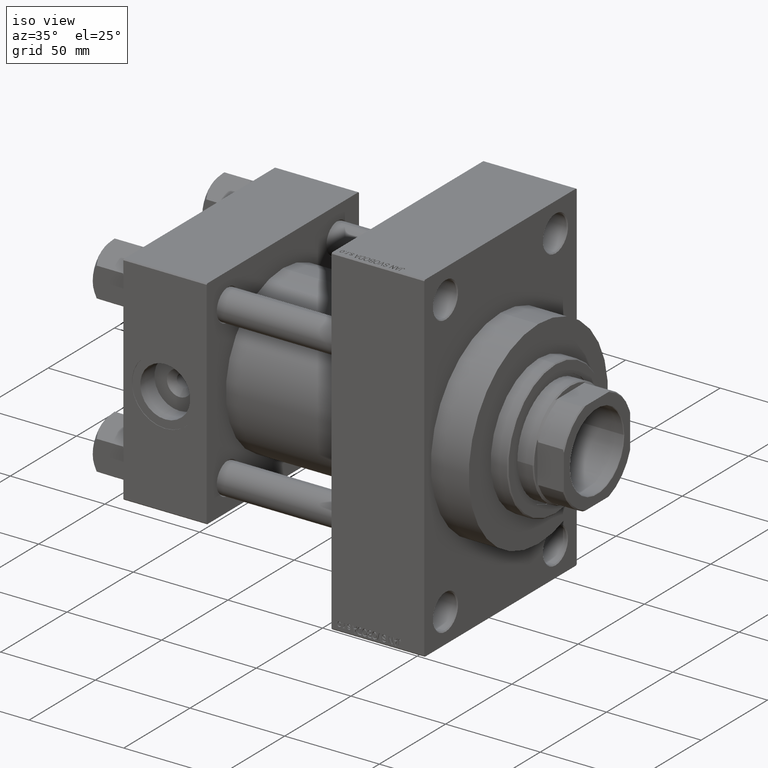
[diagram: clean part render]
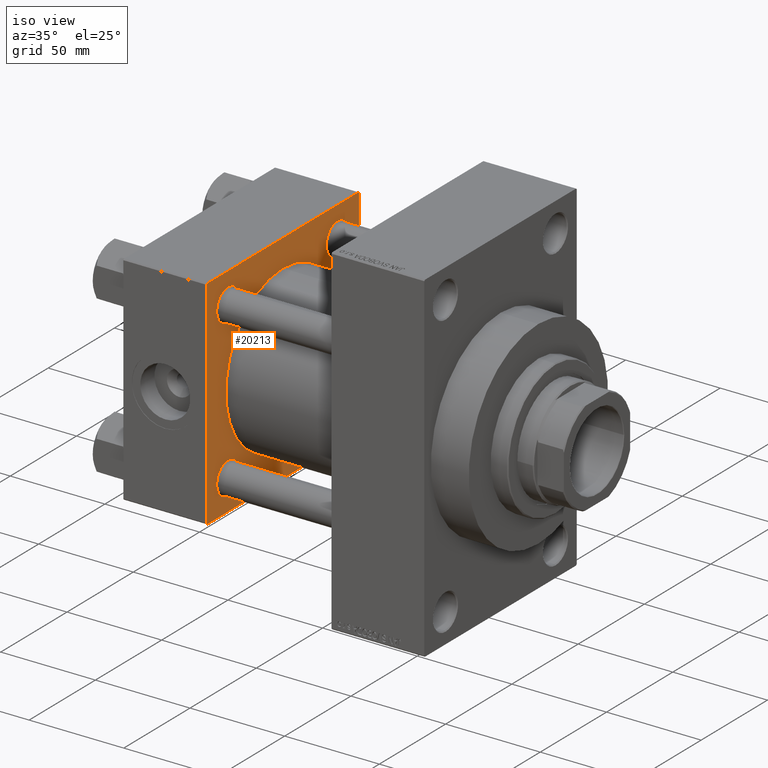
[diagram: same view with one face highlighted and labeled with its STEP entity id]
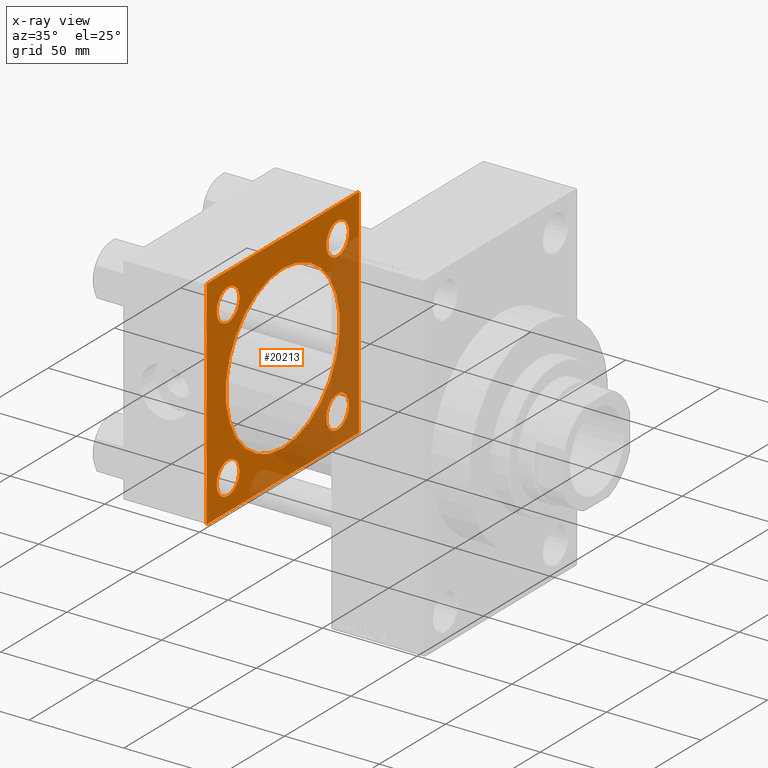
[diagram: x-ray of the same camera — body ghosted, the highlighted face saturated]
A machine part, iso view. The second image highlights one B-rep face of the part: STEP entity #20213.
The next image is the same camera in x-ray: the body ghosted, the highlighted face saturated — about 37% of this face is hidden behind the body in this view.
In plain terms, the highlighted planar face has unit normal (-1, 0, 0).
Its self-contained STEP definition (entity closure, byte-faithful):
#121 = CIRCLE ( 'NONE', #33420, 8.500000000000090594 ) ;
#449 = VECTOR ( 'NONE', #20014, 1000.000000000000114 ) ;
#603 = VERTEX_POINT ( 'NONE', #38707 ) ;
#767 = DIRECTION ( 'NONE',  ( -1.000000000000000000, 0.000000000000000000, -0.000000000000000000 ) ) ;
#1225 = CARTESIAN_POINT ( 'NONE',  ( 44.00000000000000000, 57.50000000000000000, 57.50000000000001421 ) ) ;
#1260 = EDGE_CURVE ( 'NONE', #8168, #603, #28650, .T. ) ;
#1460 = ORIENTED_EDGE ( 'NONE', *, *, #26257, .F. ) ;
#1523 = ORIENTED_EDGE ( 'NONE', *, *, #43176, .F. ) ;
#1605 = EDGE_CURVE ( 'NONE', #603, #8168, #121, .T. ) ;
#2193 = DIRECTION ( 'NONE',  ( -1.000000000000000000, 0.000000000000000000, -0.000000000000000000 ) ) ;
#2336 = EDGE_LOOP ( 'NONE', ( #26330, #1523 ) ) ;
#2998 = VECTOR ( 'NONE', #5491, 999.9999999999998863 ) ;
#3215 = CARTESIAN_POINT ( 'NONE',  ( 44.00000000000000000, -41.34999999999998721, 41.35000000000000142 ) ) ;
#3219 = ORIENTED_EDGE ( 'NONE', *, *, #8647, .T. ) ;
#3868 = AXIS2_PLACEMENT_3D ( 'NONE', #46326, #32129, #23672 ) ;
#4180 = EDGE_CURVE ( 'NONE', #29920, #13466, #17881, .T. ) ;
#4201 = DIRECTION ( 'NONE',  ( -1.000000000000000000, 0.000000000000000000, -0.000000000000000000 ) ) ;
#4269 = EDGE_LOOP ( 'NONE', ( #42209, #42057 ) ) ;
#4418 = DIRECTION ( 'NONE',  ( 0.000000000000000000, 0.000000000000000000, 1.000000000000000000 ) ) ;
#4647 = AXIS2_PLACEMENT_3D ( 'NONE', #26728, #19769, #28685 ) ;
#4856 = LINE ( 'NONE', #8101, #449 ) ;
#4894 = DIRECTION ( 'NONE',  ( 0.000000000000000000, 0.000000000000000000, 1.000000000000000000 ) ) ;
#5075 = VECTOR ( 'NONE', #22500, 1000.000000000000000 ) ;
#5105 = CARTESIAN_POINT ( 'NONE',  ( 44.00000000000000000, 41.34999999999999432, 32.84999999999990905 ) ) ;
#5177 = EDGE_LOOP ( 'NONE', ( #36809, #3219 ) ) ;
#5491 = DIRECTION ( 'NONE',  ( -0.000000000000000000, -0.7071067811865574537, -0.7071067811865376918 ) ) ;
#5973 = ORIENTED_EDGE ( 'NONE', *, *, #28668, .T. ) ;
#6616 = CARTESIAN_POINT ( 'NONE',  ( 44.00000000000000000, 57.50000000000000000, -57.49999999999999289 ) ) ;
#6907 = LINE ( 'NONE', #13462, #44022 ) ;
#7115 = AXIS2_PLACEMENT_3D ( 'NONE', #30867, #12236, #15238 ) ;
#7590 = AXIS2_PLACEMENT_3D ( 'NONE', #20513, #35680, #28201 ) ;
#7635 = VERTEX_POINT ( 'NONE', #32581 ) ;
#7890 = DIRECTION ( 'NONE',  ( -1.000000000000000000, 0.000000000000000000, -0.000000000000000000 ) ) ;
#8101 = CARTESIAN_POINT ( 'NONE',  ( 44.00000000000000000, 57.00000000000001421, 57.50000000000001421 ) ) ;
#8148 = EDGE_CURVE ( 'NONE', #29920, #29545, #4856, .T. ) ;
#8168 = VERTEX_POINT ( 'NONE', #5105 ) ;
#8647 = EDGE_CURVE ( 'NONE', #10388, #7635, #34572, .T. ) ;
#9262 = CARTESIAN_POINT ( 'NONE',  ( 44.00000000000000000, -57.50000000000000000, 56.99999999999997868 ) ) ;
#9472 = LINE ( 'NONE', #36052, #2998 ) ;
#10388 = VERTEX_POINT ( 'NONE', #34139 ) ;
#11001 = EDGE_LOOP ( 'NONE', ( #1460, #5973, #47270, #26318, #27800, #41418, #43995, #18111 ) ) ;
#11123 = EDGE_CURVE ( 'NONE', #41259, #12216, #40335, .T. ) ;
#11623 = CARTESIAN_POINT ( 'NONE',  ( 44.00000000000000000, -41.34999999999998721, 41.35000000000000142 ) ) ;
#12000 = CARTESIAN_POINT ( 'NONE',  ( 44.00000000000000000, -2.602085213965210642E-15, 43.00000000000000000 ) ) ;
#12216 = VERTEX_POINT ( 'NONE', #16012 ) ;
#12236 = DIRECTION ( 'NONE',  ( 1.000000000000000000, -0.000000000000000000, 0.000000000000000000 ) ) ;
#12656 = FACE_OUTER_BOUND ( 'NONE', #11001, .T. ) ;
#13208 = DIRECTION ( 'NONE',  ( 0.000000000000000000, 6.033820786006285224E-17, -1.000000000000000000 ) ) ;
#13380 = CARTESIAN_POINT ( 'NONE',  ( 44.00000000000000000, -41.34999999999998721, 32.84999999999991616 ) ) ;
#13389 = FACE_BOUND ( 'NONE', #42989, .T. ) ;
#13462 = CARTESIAN_POINT ( 'NONE',  ( 44.00000000000000000, 57.50000000000000000, -57.00000000000000000 ) ) ;
#13466 = VERTEX_POINT ( 'NONE', #39757 ) ;
#14084 = LINE ( 'NONE', #6616, #5075 ) ;
#14642 = CARTESIAN_POINT ( 'NONE',  ( 44.00000000000000000, 57.50000000000000000, 57.50000000000001421 ) ) ;
#15238 = DIRECTION ( 'NONE',  ( 0.000000000000000000, 0.000000000000000000, 1.000000000000000000 ) ) ;
#16012 = CARTESIAN_POINT ( 'NONE',  ( 44.00000000000000000, 41.34999999999999432, -49.85000000000008669 ) ) ;
#17103 = FACE_BOUND ( 'NONE', #4269, .T. ) ;
#17316 = VERTEX_POINT ( 'NONE', #25364 ) ;
#17736 = ORIENTED_EDGE ( 'NONE', *, *, #11123, .T. ) ;
#17881 = LINE ( 'NONE', #14642, #43078 ) ;
#18111 = ORIENTED_EDGE ( 'NONE', *, *, #25197, .T. ) ;
#18210 = CARTESIAN_POINT ( 'NONE',  ( 44.00000000000000000, -56.99999999999997158, 57.49999999999999289 ) ) ;
#18304 = VERTEX_POINT ( 'NONE', #9262 ) ;
#18777 = CARTESIAN_POINT ( 'NONE',  ( 44.00000000000000000, -57.00000000000001421, -57.50000000000000711 ) ) ;
#18798 = AXIS2_PLACEMENT_3D ( 'NONE', #11623, #7890, #4894 ) ;
#19354 = VERTEX_POINT ( 'NONE', #32991 ) ;
#19769 = DIRECTION ( 'NONE',  ( -1.000000000000000000, 0.000000000000000000, -0.000000000000000000 ) ) ;
#20014 = DIRECTION ( 'NONE',  ( 0.000000000000000000, -0.7071067811865573427, 0.7071067811865376918 ) ) ;
#20159 = LINE ( 'NONE', #43032, #30887 ) ;
#20213 = ADVANCED_FACE ( 'NONE', ( #43455, #13389, #17103, #47188, #32014, #12656 ), #28521, .F. ) ;
#20513 = CARTESIAN_POINT ( 'NONE',  ( 44.00000000000000000, 41.34999999999999432, -41.34999999999999432 ) ) ;
#22500 = DIRECTION ( 'NONE',  ( 0.000000000000000000, -1.000000000000000000, -1.206764157201257291E-16 ) ) ;
#22632 = EDGE_CURVE ( 'NONE', #22879, #24569, #35865, .T. ) ;
#22879 = VERTEX_POINT ( 'NONE', #13380 ) ;
#23568 = LINE ( 'NONE', #1225, #29989 ) ;
#23672 = DIRECTION ( 'NONE',  ( 0.000000000000000000, 0.000000000000000000, 1.000000000000000000 ) ) ;
#24235 = VERTEX_POINT ( 'NONE', #27238 ) ;
#24569 = VERTEX_POINT ( 'NONE', #40337 ) ;
#24608 = VERTEX_POINT ( 'NONE', #18210 ) ;
#24836 = DIRECTION ( 'NONE',  ( -1.000000000000000000, 0.000000000000000000, -0.000000000000000000 ) ) ;
#24927 = EDGE_CURVE ( 'NONE', #7635, #10388, #35937, .T. ) ;
#25197 = EDGE_CURVE ( 'NONE', #19354, #24235, #41142, .T. ) ;
#25271 = CIRCLE ( 'NONE', #3868, 43.00000000000000000 ) ;
#25364 = CARTESIAN_POINT ( 'NONE',  ( 44.00000000000000000, 57.00000000000002842, -57.49999999999999289 ) ) ;
#26257 = EDGE_CURVE ( 'NONE', #17316, #24235, #14084, .T. ) ;
#26318 = ORIENTED_EDGE ( 'NONE', *, *, #8148, .T. ) ;
#26330 = ORIENTED_EDGE ( 'NONE', *, *, #48001, .F. ) ;
#26728 = CARTESIAN_POINT ( 'NONE',  ( 44.00000000000000000, 41.34999999999999432, -41.34999999999999432 ) ) ;
#27238 = CARTESIAN_POINT ( 'NONE',  ( 44.00000000000000000, -57.00000000000001421, -57.50000000000000711 ) ) ;
#27507 = CIRCLE ( 'NONE', #18798, 8.500000000000090594 ) ;
#27541 = ORIENTED_EDGE ( 'NONE', *, *, #1260, .T. ) ;
#27800 = ORIENTED_EDGE ( 'NONE', *, *, #45077, .T. ) ;
#27933 = VERTEX_POINT ( 'NONE', #44381 ) ;
#27972 = AXIS2_PLACEMENT_3D ( 'NONE', #42677, #42193, #4418 ) ;
#28031 = CARTESIAN_POINT ( 'NONE',  ( 44.00000000000000000, 0.000000000000000000, 0.000000000000000000 ) ) ;
#28035 = DIRECTION ( 'NONE',  ( 0.000000000000000000, -1.000000000000000000, -1.810146235801885567E-16 ) ) ;
#28201 = DIRECTION ( 'NONE',  ( 0.000000000000000000, 0.000000000000000000, 1.000000000000000000 ) ) ;
#28521 = PLANE ( 'NONE',  #41473 ) ;
#28650 = CIRCLE ( 'NONE', #42153, 8.500000000000090594 ) ;
#28668 = EDGE_CURVE ( 'NONE', #17316, #13466, #6907, .T. ) ;
#28685 = DIRECTION ( 'NONE',  ( 0.000000000000000000, 0.000000000000000000, 1.000000000000000000 ) ) ;
#29348 = DIRECTION ( 'NONE',  ( 0.000000000000000000, 0.000000000000000000, 1.000000000000000000 ) ) ;
#29545 = VERTEX_POINT ( 'NONE', #32842 ) ;
#29782 = DIRECTION ( 'NONE',  ( 0.000000000000000000, 0.000000000000000000, -1.000000000000000000 ) ) ;
#29920 = VERTEX_POINT ( 'NONE', #41717 ) ;
#29989 = VECTOR ( 'NONE', #28035, 1000.000000000000000 ) ;
#30716 = EDGE_CURVE ( 'NONE', #12216, #41259, #40921, .T. ) ;
#30867 = CARTESIAN_POINT ( 'NONE',  ( 44.00000000000000000, -2.602085213965210642E-15, 0.000000000000000000 ) ) ;
#30887 = VECTOR ( 'NONE', #13208, 1000.000000000000000 ) ;
#31520 = DIRECTION ( 'NONE',  ( -0.000000000000000000, 0.000000000000000000, 1.000000000000000000 ) ) ;
#32014 = FACE_BOUND ( 'NONE', #2336, .T. ) ;
#32129 = DIRECTION ( 'NONE',  ( 1.000000000000000000, -0.000000000000000000, 0.000000000000000000 ) ) ;
#32581 = CARTESIAN_POINT ( 'NONE',  ( 44.00000000000000000, -41.34999999999998721, -49.85000000000009379 ) ) ;
#32842 = CARTESIAN_POINT ( 'NONE',  ( 44.00000000000000000, 57.00000000000001421, 57.50000000000001421 ) ) ;
#32991 = CARTESIAN_POINT ( 'NONE',  ( 44.00000000000000000, -57.49999999999999289, -57.00000000000003553 ) ) ;
#33332 = DIRECTION ( 'NONE',  ( -1.000000000000000000, 0.000000000000000000, -0.000000000000000000 ) ) ;
#33420 = AXIS2_PLACEMENT_3D ( 'NONE', #49196, #4201, #37991 ) ;
#34139 = CARTESIAN_POINT ( 'NONE',  ( 44.00000000000000000, -41.34999999999998721, -32.84999999999991616 ) ) ;
#34572 = CIRCLE ( 'NONE', #39320, 8.500000000000090594 ) ;
#35680 = DIRECTION ( 'NONE',  ( -1.000000000000000000, 0.000000000000000000, -0.000000000000000000 ) ) ;
#35865 = CIRCLE ( 'NONE', #44587, 8.500000000000090594 ) ;
#35893 = ORIENTED_EDGE ( 'NONE', *, *, #30716, .T. ) ;
#35937 = CIRCLE ( 'NONE', #27972, 8.500000000000090594 ) ;
#36052 = CARTESIAN_POINT ( 'NONE',  ( 44.00000000000000000, -57.50000000000000000, 56.99999999999997868 ) ) ;
#36809 = ORIENTED_EDGE ( 'NONE', *, *, #24927, .T. ) ;
#37991 = DIRECTION ( 'NONE',  ( 0.000000000000000000, 0.000000000000000000, 1.000000000000000000 ) ) ;
#38052 = CARTESIAN_POINT ( 'NONE',  ( 44.00000000000000000, 41.34999999999999432, 41.34999999999999432 ) ) ;
#38707 = CARTESIAN_POINT ( 'NONE',  ( 44.00000000000000000, 41.34999999999999432, 49.85000000000008669 ) ) ;
#38898 = EDGE_CURVE ( 'NONE', #24569, #22879, #27507, .T. ) ;
#39320 = AXIS2_PLACEMENT_3D ( 'NONE', #45006, #33332, #29348 ) ;
#39757 = CARTESIAN_POINT ( 'NONE',  ( 44.00000000000000000, 57.50000000000000000, -56.99999999999997158 ) ) ;
#40043 = DIRECTION ( 'NONE',  ( -0.000000000000000000, 0.7071067811865328068, 0.7071067811865622277 ) ) ;
#40261 = VERTEX_POINT ( 'NONE', #12000 ) ;
#40335 = CIRCLE ( 'NONE', #4647, 8.500000000000090594 ) ;
#40337 = CARTESIAN_POINT ( 'NONE',  ( 44.00000000000000000, -41.34999999999998721, 49.85000000000009379 ) ) ;
#40921 = CIRCLE ( 'NONE', #7590, 8.500000000000090594 ) ;
#41142 = LINE ( 'NONE', #18777, #44688 ) ;
#41259 = VERTEX_POINT ( 'NONE', #42814 ) ;
#41418 = ORIENTED_EDGE ( 'NONE', *, *, #44125, .T. ) ;
#41473 = AXIS2_PLACEMENT_3D ( 'NONE', #28031, #2193, #31520 ) ;
#41717 = CARTESIAN_POINT ( 'NONE',  ( 44.00000000000000000, 57.50000000000000000, 57.00000000000004263 ) ) ;
#42030 = DIRECTION ( 'NONE',  ( 0.000000000000000000, 0.000000000000000000, 1.000000000000000000 ) ) ;
#42057 = ORIENTED_EDGE ( 'NONE', *, *, #38898, .T. ) ;
#42153 = AXIS2_PLACEMENT_3D ( 'NONE', #38052, #767, #42030 ) ;
#42193 = DIRECTION ( 'NONE',  ( -1.000000000000000000, 0.000000000000000000, -0.000000000000000000 ) ) ;
#42209 = ORIENTED_EDGE ( 'NONE', *, *, #22632, .T. ) ;
#42298 = EDGE_LOOP ( 'NONE', ( #27541, #43772 ) ) ;
#42677 = CARTESIAN_POINT ( 'NONE',  ( 44.00000000000000000, -41.34999999999998721, -41.35000000000000142 ) ) ;
#42814 = CARTESIAN_POINT ( 'NONE',  ( 44.00000000000000000, 41.34999999999999432, -32.84999999999990905 ) ) ;
#42989 = EDGE_LOOP ( 'NONE', ( #35893, #17736 ) ) ;
#43032 = CARTESIAN_POINT ( 'NONE',  ( 44.00000000000000000, -57.50000000000000000, 57.49999999999999289 ) ) ;
#43078 = VECTOR ( 'NONE', #29782, 1000.000000000000000 ) ;
#43176 = EDGE_CURVE ( 'NONE', #27933, #40261, #25271, .T. ) ;
#43455 = FACE_BOUND ( 'NONE', #5177, .T. ) ;
#43749 = DIRECTION ( 'NONE',  ( 0.000000000000000000, 0.000000000000000000, 1.000000000000000000 ) ) ;
#43772 = ORIENTED_EDGE ( 'NONE', *, *, #1605, .T. ) ;
#43995 = ORIENTED_EDGE ( 'NONE', *, *, #47052, .T. ) ;
#44022 = VECTOR ( 'NONE', #40043, 1000.000000000000000 ) ;
#44125 = EDGE_CURVE ( 'NONE', #24608, #18304, #9472, .T. ) ;
#44381 = CARTESIAN_POINT ( 'NONE',  ( 44.00000000000000000, 2.663896022368408223E-15, -43.00000000000000000 ) ) ;
#44587 = AXIS2_PLACEMENT_3D ( 'NONE', #3215, #24836, #43749 ) ;
#44688 = VECTOR ( 'NONE', #44874, 1000.000000000000000 ) ;
#44874 = DIRECTION ( 'NONE',  ( 0.000000000000000000, 0.7071067811865524577, -0.7071067811865426878 ) ) ;
#45006 = CARTESIAN_POINT ( 'NONE',  ( 44.00000000000000000, -41.34999999999998721, -41.35000000000000142 ) ) ;
#45077 = EDGE_CURVE ( 'NONE', #29545, #24608, #23568, .T. ) ;
#46326 = CARTESIAN_POINT ( 'NONE',  ( 44.00000000000000000, -2.602085213965210642E-15, 0.000000000000000000 ) ) ;
#47052 = EDGE_CURVE ( 'NONE', #18304, #19354, #20159, .T. ) ;
#47188 = FACE_BOUND ( 'NONE', #42298, .T. ) ;
#47270 = ORIENTED_EDGE ( 'NONE', *, *, #4180, .F. ) ;
#48001 = EDGE_CURVE ( 'NONE', #40261, #27933, #48389, .T. ) ;
#48389 = CIRCLE ( 'NONE', #7115, 43.00000000000000000 ) ;
#49196 = CARTESIAN_POINT ( 'NONE',  ( 44.00000000000000000, 41.34999999999999432, 41.34999999999999432 ) ) ;